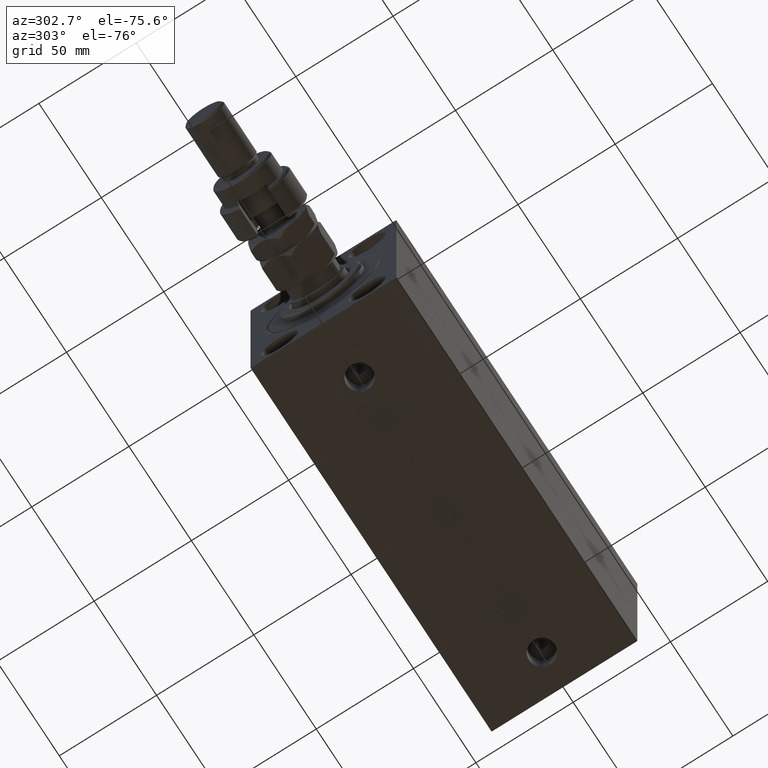
[diagram: clean part render]
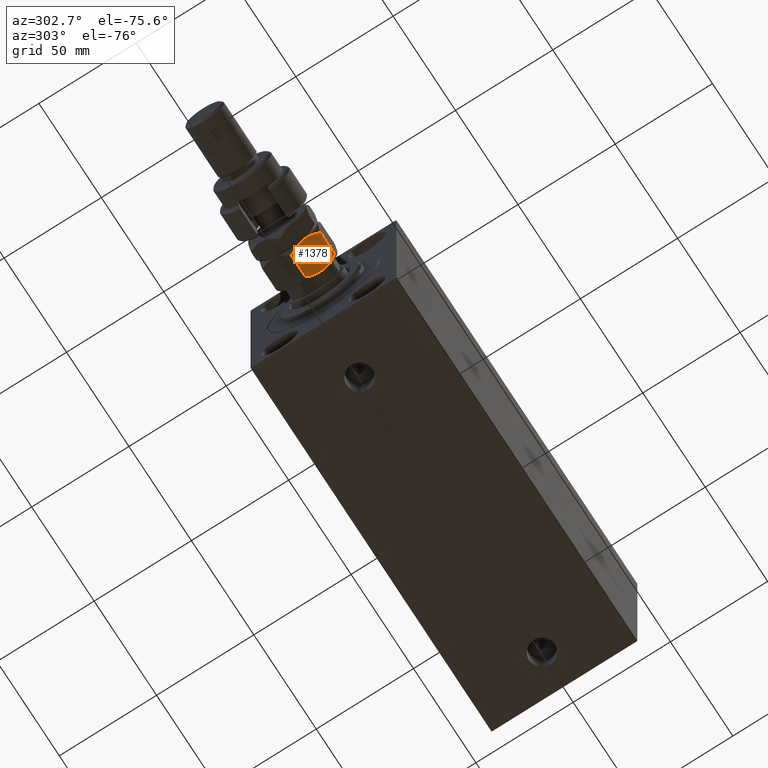
[diagram: same view with one face highlighted and labeled with its STEP entity id]
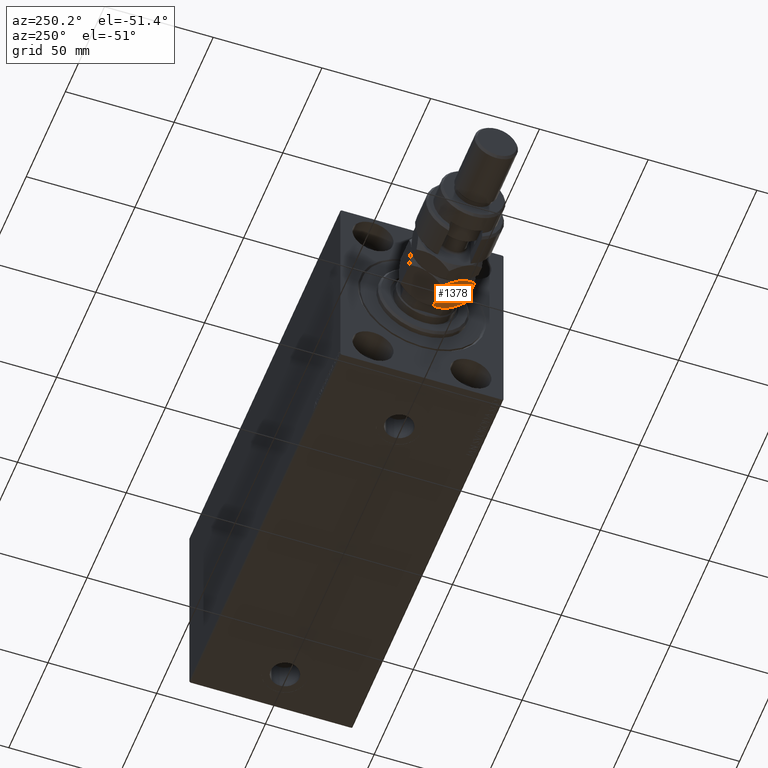
[diagram: same view with one face highlighted and labeled with its STEP entity id]
A machine part, auxiliary view. The second image highlights one B-rep face of the part: STEP entity #1378.
A second angle (auxiliary view) of the same face is appended — the face is thin or edge-on in the first view.
In plain terms, the highlighted planar face has unit normal (0, 0.5, 0.866).
Its self-contained STEP definition (entity closure, byte-faithful):
#1378 = ADVANCED_FACE ( 'NONE', ( #30211 ), #45081, .F. ) ;
#2104 = AXIS2_PLACEMENT_3D ( 'NONE', #11723, #31630, #31388 ) ;
#2784 = VERTEX_POINT ( 'NONE', #32540 ) ;
#2915 = CARTESIAN_POINT ( 'NONE',  ( -13.82389157469335750, -9.339280553791368789, 14.35851844025821933 ) ) ;
#3867 = B_SPLINE_CURVE_WITH_KNOTS ( 'NONE', 3,
 ( #31460, #46328, #28306, #42929, #43165, #27336 ),
 .UNSPECIFIED., .F., .F.,
 ( 4, 2, 4 ),
 ( 0.008977392552884445528, 0.01343452311421656012, 0.01789165367554867297 ),
 .UNSPECIFIED. ) ;
#4107 = VECTOR ( 'NONE', #31515, 1000.000000000000000 ) ;
#5694 = CARTESIAN_POINT ( 'NONE',  ( -3.416099238086855886E-15, -17.32050807568877104, 13.67949192431124317 ) ) ;
#5862 = CARTESIAN_POINT ( 'NONE',  ( -4.247772349543487813, -14.86805556622358893, 0.4475714085130264031 ) ) ;
#6236 = LINE ( 'NONE', #24976, #15239 ) ;
#6488 = EDGE_CURVE ( 'NONE', #35571, #20879, #6236, .T. ) ;
#6723 = EDGE_CURVE ( 'NONE', #38083, #2784, #17173, .T. ) ;
#9110 = CARTESIAN_POINT ( 'NONE',  ( -2.383929548160354628, -15.94414570932928576, 14.93952096862912526 ) ) ;
#11723 = CARTESIAN_POINT ( 'NONE',  ( -14.99999999999999645, -8.660254037844389075, 16.00000000000000000 ) ) ;
#13548 = ORIENTED_EDGE ( 'NONE', *, *, #43600, .F. ) ;
#14122 = CARTESIAN_POINT ( 'NONE',  ( -8.823580389329300999, -12.22621156269320331, 15.94046462602529957 ) ) ;
#15239 = VECTOR ( 'NONE', #47146, 1000.000000000000000 ) ;
#17113 = ORIENTED_EDGE ( 'NONE', *, *, #6488, .T. ) ;
#17173 = B_SPLINE_CURVE_WITH_KNOTS ( 'NONE', 3,
 ( #46122, #20547, #34904, #9110, #28098, #5694 ),
 .UNSPECIFIED., .F., .F.,
 ( 4, 2, 4 ),
 ( 0.008977392552884447263, 0.01343452311421656359, 0.01789165367554867991 ),
 .UNSPECIFIED. ) ;
#17329 = CARTESIAN_POINT ( 'NONE',  ( -7.500000000000001776, -12.99038105676658361, 16.00000000000000000 ) ) ;
#17358 = B_SPLINE_CURVE_WITH_KNOTS ( 'NONE', 3,
 ( #28034, #32148, #32628, #5862, #47029, #20716, #20482, #24846 ),
 .UNSPECIFIED., .F., .F.,
 ( 4, 2, 2, 4 ),
 ( 2.544309033648719118E-07, 0.004488823491893905240, 0.006733108022389175384, 0.008977392552884445528 ),
 .UNSPECIFIED. ) ;
#17774 = CARTESIAN_POINT ( 'NONE',  ( -12.62116548881249223, -10.03367478323606221, 14.93551393225599533 ) ) ;
#18575 = CARTESIAN_POINT ( 'NONE',  ( -14.99999999999999645, -8.660254037844389075, 13.67949192431124139 ) ) ;
#19170 = CARTESIAN_POINT ( 'NONE',  ( -7.500000000000000000, -12.99038105676658006, 0.000000000000000000 ) ) ;
#20331 = LINE ( 'NONE', #43217, #4107 ) ;
#20482 = CARTESIAN_POINT ( 'NONE',  ( -6.843123817691746602, -13.36962869744650284, -3.760826285809093999E-16 ) ) ;
#20547 = CARTESIAN_POINT ( 'NONE',  ( -6.195449321423087241, -13.74356374221446586, 16.00000000000001066 ) ) ;
#20716 = CARTESIAN_POINT ( 'NONE',  ( -6.176419610670697224, -13.75455055083996214, 0.05953537397470286957 ) ) ;
#20879 = VERTEX_POINT ( 'NONE', #33601 ) ;
#21260 = ORIENTED_EDGE ( 'NONE', *, *, #41362, .F. ) ;
#21664 = CARTESIAN_POINT ( 'NONE',  ( -8.156876182308250733, -12.61113341608665905, 16.00000000000000355 ) ) ;
#22667 = CARTESIAN_POINT ( 'NONE',  ( -2.796947266322166691E-15, -17.32050807568877104, 2.320508075688761718 ) ) ;
#24846 = CARTESIAN_POINT ( 'NONE',  ( -7.500000000000000000, -12.99038105676658006, 0.000000000000000000 ) ) ;
#24976 = CARTESIAN_POINT ( 'NONE',  ( -14.99999999999999645, -8.660254037844389075, 16.00000000000000000 ) ) ;
#25106 = VERTEX_POINT ( 'NONE', #22667 ) ;
#26818 = ORIENTED_EDGE ( 'NONE', *, *, #27811, .F. ) ;
#27336 = CARTESIAN_POINT ( 'NONE',  ( -14.99999999999999645, -8.660254037844389075, 2.320508075688762606 ) ) ;
#27811 = EDGE_CURVE ( 'NONE', #2784, #25106, #20331, .T. ) ;
#28034 = CARTESIAN_POINT ( 'NONE',  ( -2.796947266322166691E-15, -17.32050807568877104, 2.320508075688761718 ) ) ;
#28098 = CARTESIAN_POINT ( 'NONE',  ( -1.174746544192163844, -16.64226784216984711, 14.35773215783022572 ) ) ;
#28306 = CARTESIAN_POINT ( 'NONE',  ( -10.08691881950258740, -11.49682277995505331, 0.2303299219392165864 ) ) ;
#28565 = EDGE_LOOP ( 'NONE', ( #21260, #26818, #41440, #28571, #17113, #13548 ) ) ;
#28571 = ORIENTED_EDGE ( 'NONE', *, *, #33867, .F. ) ;
#28962 = CARTESIAN_POINT ( 'NONE',  ( -7.500000000000001776, -12.99038105676658361, 16.00000000000000000 ) ) ;
#30211 = FACE_OUTER_BOUND ( 'NONE', #28565, .T. ) ;
#31388 = DIRECTION ( 'NONE',  ( -0.8660254037844385966, 0.4999999999999999445, 0.000000000000000000 ) ) ;
#31460 = CARTESIAN_POINT ( 'NONE',  ( -7.500000000000000000, -12.99038105676658006, 0.000000000000000000 ) ) ;
#31515 = DIRECTION ( 'NONE',  ( -0.000000000000000000, -0.000000000000000000, -1.000000000000000000 ) ) ;
#31630 = DIRECTION ( 'NONE',  ( 0.5000000000000000000, 0.8660254037844387076, -0.000000000000000000 ) ) ;
#32148 = CARTESIAN_POINT ( 'NONE',  ( -1.176108425306644722, -16.64148155974179488, 1.641481559741788665 ) ) ;
#32540 = CARTESIAN_POINT ( 'NONE',  ( -3.416099238086855886E-15, -17.32050807568877104, 13.67949192431124317 ) ) ;
#32600 = CARTESIAN_POINT ( 'NONE',  ( -10.75222765045651308, -11.11270654730956409, 15.55242859148697576 ) ) ;
#32628 = CARTESIAN_POINT ( 'NONE',  ( -2.378834511187505996, -15.94708733029708725, 1.064486067744005560 ) ) ;
#33601 = CARTESIAN_POINT ( 'NONE',  ( -14.99999999999999645, -8.660254037844389075, 2.320508075688762606 ) ) ;
#33867 = EDGE_CURVE ( 'NONE', #35571, #38083, #34221, .T. ) ;
#34221 = B_SPLINE_CURVE_WITH_KNOTS ( 'NONE', 3,
 ( #36261, #2915, #17774, #32600, #47490, #14122, #21664, #28962 ),
 .UNSPECIFIED., .F., .F.,
 ( 4, 2, 2, 4 ),
 ( 2.544309033641602453E-07, 0.004488823491893906108, 0.006733108022389176252, 0.008977392552884447263 ),
 .UNSPECIFIED. ) ;
#34904 = CARTESIAN_POINT ( 'NONE',  ( -4.913081180497412603, -14.48393933357810504, 15.76967007806078946 ) ) ;
#35571 = VERTEX_POINT ( 'NONE', #18575 ) ;
#35850 = VERTEX_POINT ( 'NONE', #19170 ) ;
#36261 = CARTESIAN_POINT ( 'NONE',  ( -14.99999999999999645, -8.660254037844389075, 13.67949192431124139 ) ) ;
#38083 = VERTEX_POINT ( 'NONE', #17329 ) ;
#41362 = EDGE_CURVE ( 'NONE', #25106, #35850, #17358, .T. ) ;
#41440 = ORIENTED_EDGE ( 'NONE', *, *, #6723, .F. ) ;
#42929 = CARTESIAN_POINT ( 'NONE',  ( -12.61607045183964715, -10.03661640420386902, 1.060479031370877845 ) ) ;
#43165 = CARTESIAN_POINT ( 'NONE',  ( -13.82525345580783060, -9.338494271363318333, 1.642267842169780279 ) ) ;
#43217 = CARTESIAN_POINT ( 'NONE',  ( -3.035766082959412415E-15, -17.32050807568877104, 16.00000000000000000 ) ) ;
#43600 = EDGE_CURVE ( 'NONE', #35850, #20879, #3867, .T. ) ;
#45081 = PLANE ( 'NONE',  #2104 ) ;
#46122 = CARTESIAN_POINT ( 'NONE',  ( -7.500000000000001776, -12.99038105676658361, 16.00000000000000000 ) ) ;
#46328 = CARTESIAN_POINT ( 'NONE',  ( -8.804550678576912759, -12.23719837131869248, -4.878909776184767981E-16 ) ) ;
#47029 = CARTESIAN_POINT ( 'NONE',  ( -4.881674457977378090, -14.50207201327941320, 0.2838026619462943323 ) ) ;
#47146 = DIRECTION ( 'NONE',  ( -0.000000000000000000, -0.000000000000000000, -1.000000000000000000 ) ) ;
#47490 = CARTESIAN_POINT ( 'NONE',  ( -10.11832554202262102, -11.47869010025374692, 15.71619733805371411 ) ) ;